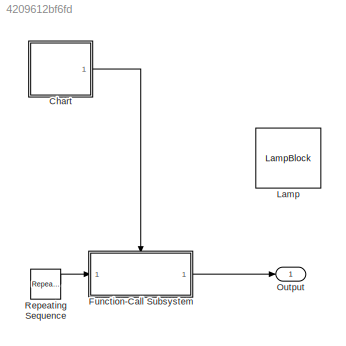
MODEL slx_4209612bf6fd
KIND model
CONFIG AbsTol = auto
CONFIG EnableMultiTasking = off
CONFIG FixedStep = auto
CONFIG MaxStep = auto
CONFIG MinStep = auto
CONFIG RelTol = 1e-3
CONFIG SampleTimeConstraint = Unconstrained
CONFIG Solver = VariableStepAuto
CONFIG SolverName = VariableStepAuto
CONFIG StartTime = 0.0
CONFIG StopTime = 10.0
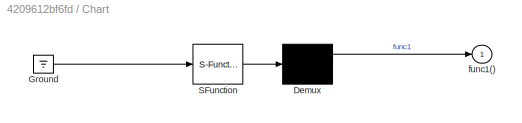
BLOCK [SubSystem] Chart
  ErrorFcn = Stateflow.Translate.translate
  PermitHierarchicalResolution = ExplicitOnly
  Ports = [0, 1]
  RequestExecContextInheritance = off
  SFBlockType = Chart
  TreatAsAtomicUnit = on
BLOCK [Demux] Chart/ Demux 
  Outputs = 1
  Ports = [1, 1]
BLOCK [Ground] Chart/ Ground 
BLOCK [S-Function] Chart/ SFunction 
  EnableBusSupport = on
  FunctionName = sf_sfun
  PortCounts = [1 1]
  Ports = [1, 1]
  SFcnIsStateOwnerBlock = off
  SFunctionDeploymentMode = off
  Tag = Stateflow S-Function topic_6 3
BLOCK [Outport] Chart/func1()
  IconDisplay = Port number
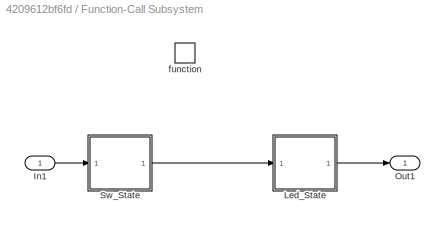
BLOCK [SubSystem] Function-Call Subsystem
  Ports = [1, 1, 0, 1]
  RequestExecContextInheritance = off
  TreatAsAtomicUnit = on
BLOCK [Inport] Function-Call Subsystem/In1
  IconDisplay = Port number
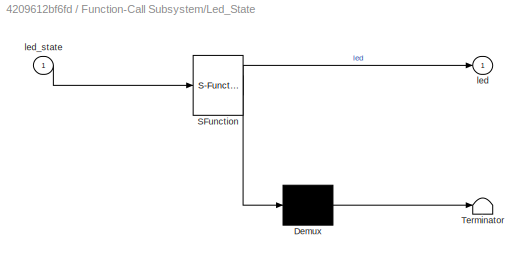
BLOCK [SubSystem] Function-Call Subsystem/Led_State
  ErrorFcn = Stateflow.Translate.translate
  PermitHierarchicalResolution = ExplicitOnly
  Ports = [1, 1]
  RequestExecContextInheritance = off
  SFBlockType = Chart
  TreatAsAtomicUnit = on
BLOCK [Demux] Function-Call Subsystem/Led_State/ Demux 
  Outputs = 1
  Ports = [1, 1]
BLOCK [S-Function] Function-Call Subsystem/Led_State/ SFunction 
  EnableBusSupport = on
  FunctionName = sf_sfun
  PortCounts = [1 2]
  Ports = [1, 2]
  SFcnIsStateOwnerBlock = off
  SFunctionDeploymentMode = off
  Tag = Stateflow S-Function topic_6 2
BLOCK [Terminator] Function-Call Subsystem/Led_State/ Terminator 
BLOCK [Outport] Function-Call Subsystem/Led_State/led
  IconDisplay = Port number
BLOCK [Inport] Function-Call Subsystem/Led_State/led_state
  IconDisplay = Port number
BLOCK [Outport] Function-Call Subsystem/Out1
  IconDisplay = Port number
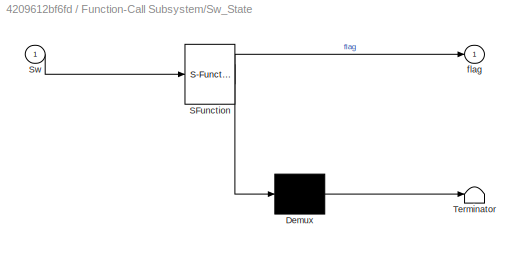
BLOCK [SubSystem] Function-Call Subsystem/Sw_State
  ErrorFcn = Stateflow.Translate.translate
  PermitHierarchicalResolution = ExplicitOnly
  Ports = [1, 1]
  RequestExecContextInheritance = off
  SFBlockType = Chart
  TreatAsAtomicUnit = on
BLOCK [Demux] Function-Call Subsystem/Sw_State/ Demux 
  Outputs = 1
  Ports = [1, 1]
BLOCK [S-Function] Function-Call Subsystem/Sw_State/ SFunction 
  EnableBusSupport = on
  FunctionName = sf_sfun
  PortCounts = [1 2]
  Ports = [1, 2]
  SFcnIsStateOwnerBlock = off
  SFunctionDeploymentMode = off
  Tag = Stateflow S-Function topic_6 1
BLOCK [Terminator] Function-Call Subsystem/Sw_State/ Terminator 
BLOCK [Inport] Function-Call Subsystem/Sw_State/Sw
  IconDisplay = Port number
BLOCK [Outport] Function-Call Subsystem/Sw_State/flag
  IconDisplay = Port number
BLOCK [TriggerPort] Function-Call Subsystem/function
  Ports = []
  StatesWhenEnabling = held
  TriggerType = function-call
  VariantControl = Variant
BLOCK [LampBlock] Lamp
  LabelPosition = Hide
  WebBlockId = 7
BLOCK [Outport] Output
  IconDisplay = Port number
BLOCK [Reference] Repeating Sequence  REF=simulink/Sources/Repeating
Sequence
  Ports = [0, 1]
  SourceBlock = simulink/Sources/Repeating\nSequence
  SourceProductBaseCode = SL
  SourceProductName = Simulink
  SourceType = Repeating table
LINE Chart:1 -> Function-Call Subsystem:trigger
LINE Function-Call Subsystem/In1:1 -> Function-Call Subsystem/Sw_State:1
LINE Function-Call Subsystem/Led_State:1 -> Function-Call Subsystem/Out1:1
LINE Function-Call Subsystem/Sw_State:1 -> Function-Call Subsystem/Led_State:1
LINE Function-Call Subsystem:1 -> Output:1
LINE Repeating Sequence:1 -> Function-Call Subsystem:1
CHART Function-Call
Subsystem/Sw_State states=0 transitions=6
CHART Function-Call
Subsystem/Led_State states=0 transitions=6
CHART Chart states=1 transitions=2
  STATE_LABEL 'CallFunction\n\nen:\ndu:\nex:\n'
